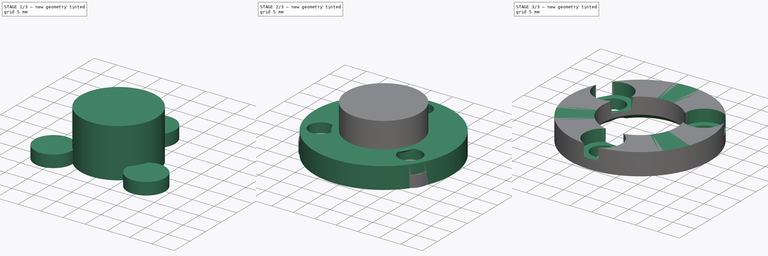
[diagram: build sequence overview — one tinted view per stage of 3, left to right]
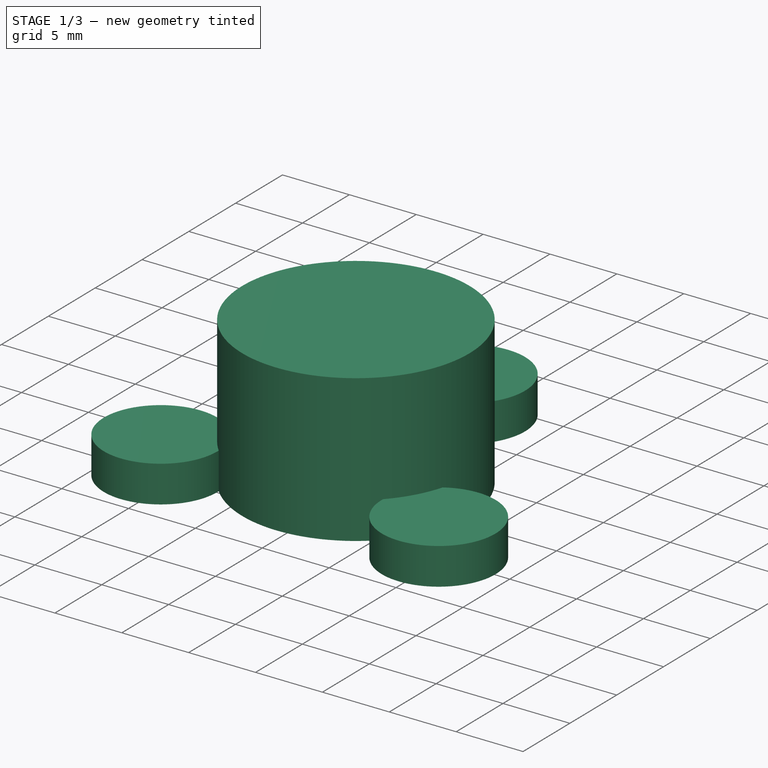
[diagram: stage 1 of 3 — iso view after this stage's code; geometry added in this stage tinted green]
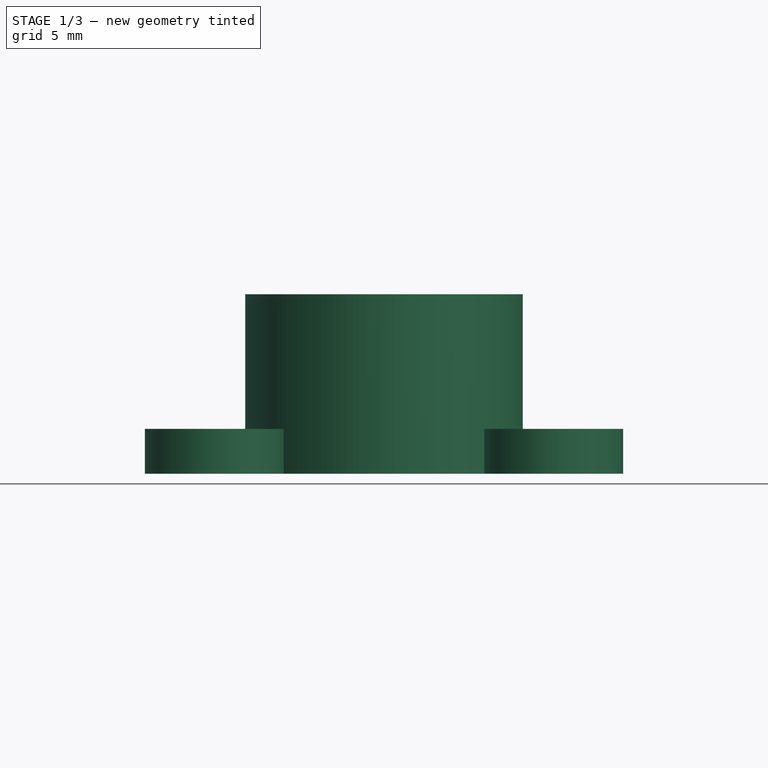
[diagram: stage 1 of 3 — front view after this stage's code; geometry added in this stage tinted green]
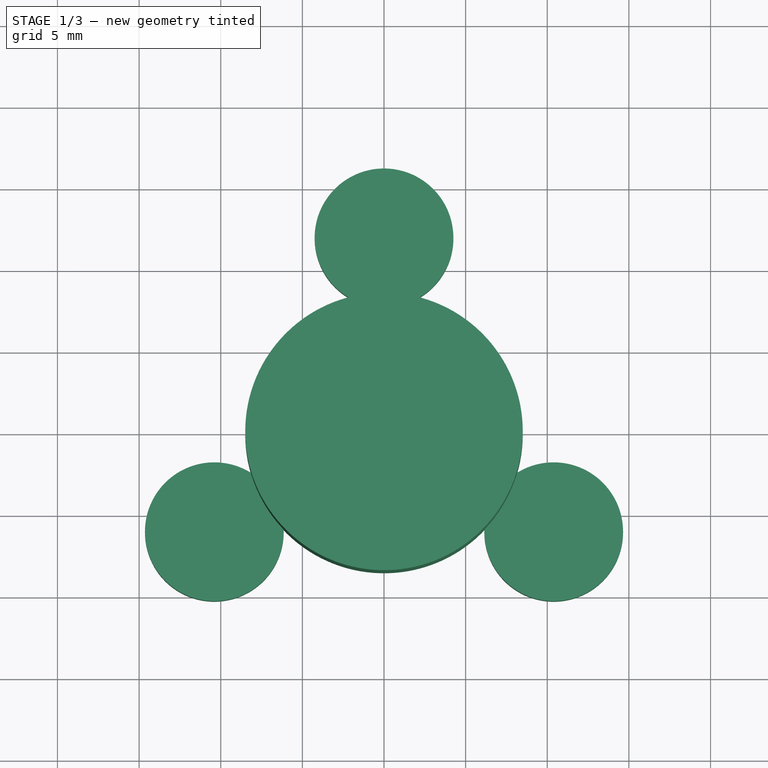
[diagram: stage 1 of 3 — top view after this stage's code; geometry added in this stage tinted green]
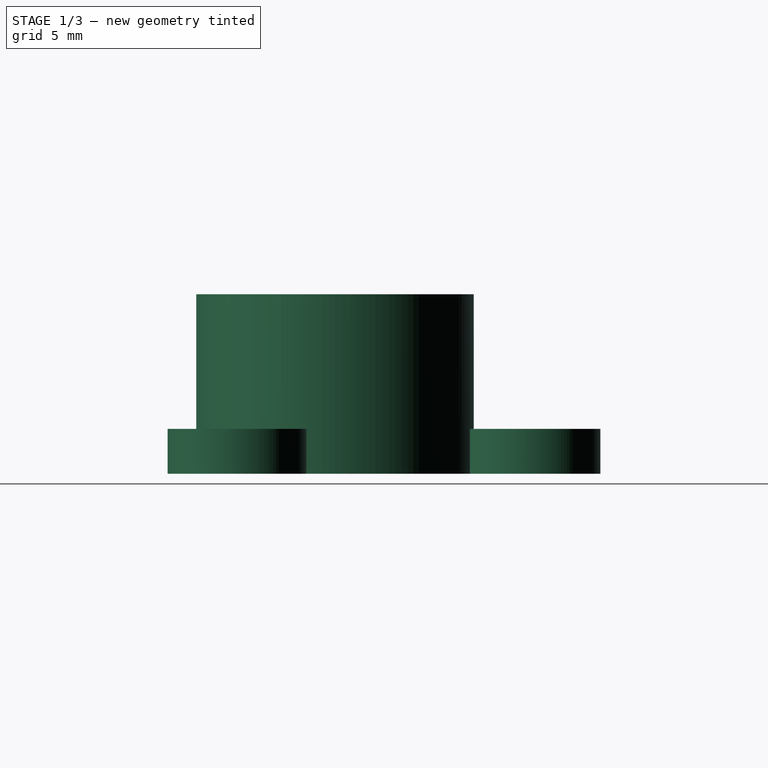
[diagram: stage 1 of 3 — right view after this stage's code; geometry added in this stage tinted green]
FCSTD DOCUMENT  (FreeCAD 0.15R4671 (Git))
Label: wheel
License: All rights reserved
LicenseURL: http://fr.wikipedia.org/wiki/<copyright redacted>
objects: Sketcher::SketchObject×2, PartDesign::Pad×2, Part::Cut×2, Part::Cone×1, Part::Cylinder×1, Part::MultiFuse×1
note: 11 computed .brp shape members not serialized (recipe doc carries the construction recipe); baked Part::Feature solids carry a one-line shape summary decoded from their .brp

FEATURE [Part::Cylinder] Cylinder  label="Cylindre"
  Angle = 360
  Height = 11
  Placement = pos=(40,0,0) rot=(0,0,1;0rad)
  Radius = 8.5
FEATURE [Sketcher::SketchObject] Sketch005
  Placement = pos=(40,0,0) rot=(0,0,1;0rad)
  sketch-geometry (3):
    g0: Circle CenterX=0 CenterY=12 CenterZ=0 NormalX=0 NormalY=0 NormalZ=1 Radius=4.25
    g1: Circle CenterX=-10.3923 CenterY=-5.99998 CenterZ=0 NormalX=0 NormalY=0 NormalZ=1 Radius=4.25
    g2: Circle CenterX=10.3923 CenterY=-5.99998 CenterZ=0 NormalX=0 NormalY=0 NormalZ=1 Radius=4.25
  constraints (9):
    c: PointOnObject(g0,g-2)
    c: Radius(g0) = 4.25
    c: DistanceY(g-1,g0) = 12
    c: Equal(g0,g2)
    c: Equal(g2,g1)
    c: Distance(g-1,g1) = 12
    c: Distance(g-1,g2) = 12
    c: Symmetric(g2,g1,g-2)
    c: Distance(g2,g0) = 20.7846
FEATURE [PartDesign::Pad] Pad005  label="Pad009"
  Length = 2.75
  Length2 = 100
  Placement = pos=(40,0,0) rot=(0,0,1;0rad)
  Sketch = -> Sketch005
  Type = 0
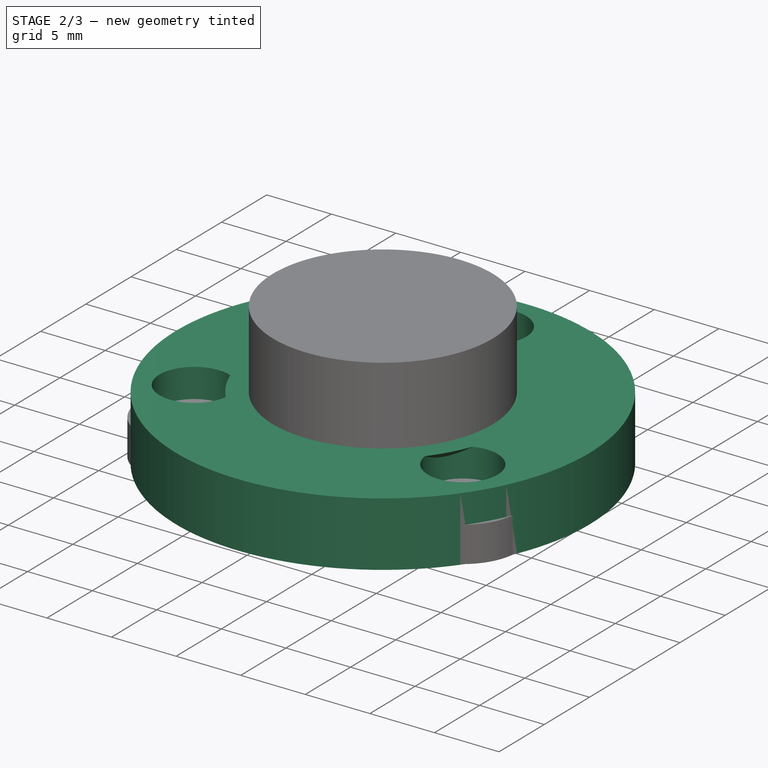
[diagram: stage 2 of 3 — iso view after this stage's code; geometry added in this stage tinted green]
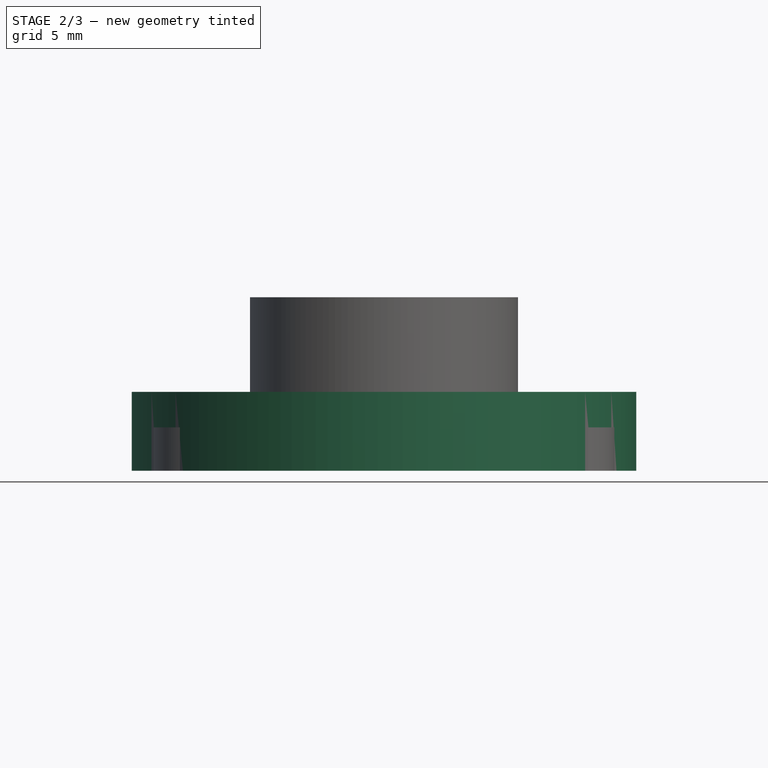
[diagram: stage 2 of 3 — front view after this stage's code; geometry added in this stage tinted green]
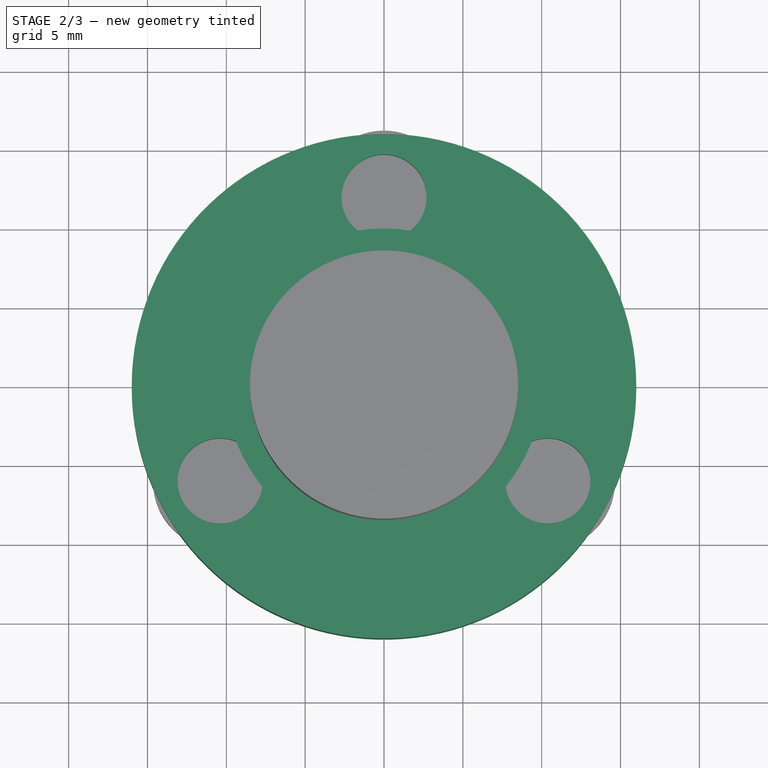
[diagram: stage 2 of 3 — top view after this stage's code; geometry added in this stage tinted green]
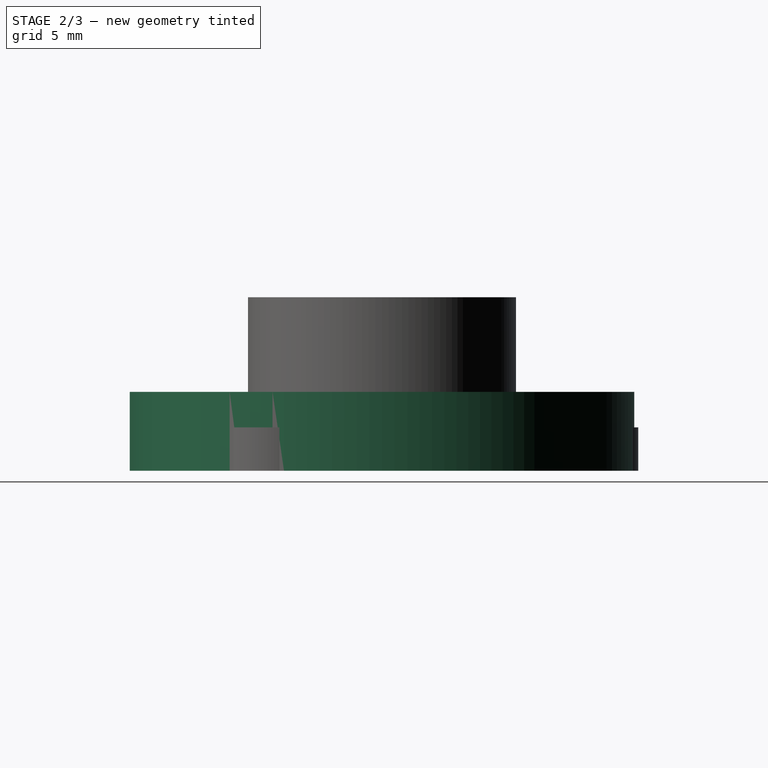
[diagram: stage 2 of 3 — right view after this stage's code; geometry added in this stage tinted green]
FEATURE [Sketcher::SketchObject] Sketch003
  Placement = pos=(40,0,0) rot=(0,0,1;0rad)
  sketch-geometry (4):
    g0: Circle CenterX=0 CenterY=0 CenterZ=0 NormalX=0 NormalY=0 NormalZ=1 Radius=16
    g1: Circle CenterX=0 CenterY=12 CenterZ=0 NormalX=0 NormalY=0 NormalZ=1 Radius=2.7
    g2: Circle CenterX=-10.3923 CenterY=-5.99998 CenterZ=0 NormalX=0 NormalY=0 NormalZ=1 Radius=2.7
    g3: Circle CenterX=10.3923 CenterY=-5.99998 CenterZ=0 NormalX=0 NormalY=0 NormalZ=1 Radius=2.7
  constraints (10):
    c: Coincident(g0,g-1)
    c: Radius(g0) = 16
    c: PointOnObject(g1,g-2)
    c: Equal(g3,g1)
    c: Equal(g1,g2)
    c: Radius(g1) = 2.7
    c: DistanceY(g-1,g1) = 12
    c: Symmetric(g3,g2,g-2)
    c: Distance(g-1,g3) = 12
    c: Distance(g1,g3) = 20.7846
FEATURE [PartDesign::Pad] Pad003  label="Pad006"
  Length = 5
  Length2 = 100
  Placement = pos=(40,0,0) rot=(0,0,1;0rad)
  Sketch = -> Sketch003
  Type = 0
FEATURE [Part::Cone] Cone  label="Cône"
  Angle = 360
  Height = 3
  Placement = pos=(40,0,2) rot=(0,0,1;0rad)
  Radius1 = 6.5
  Radius2 = 10
FEATURE [Part::MultiFuse] Fusion
  Shapes = -> [Cone,Cylinder]
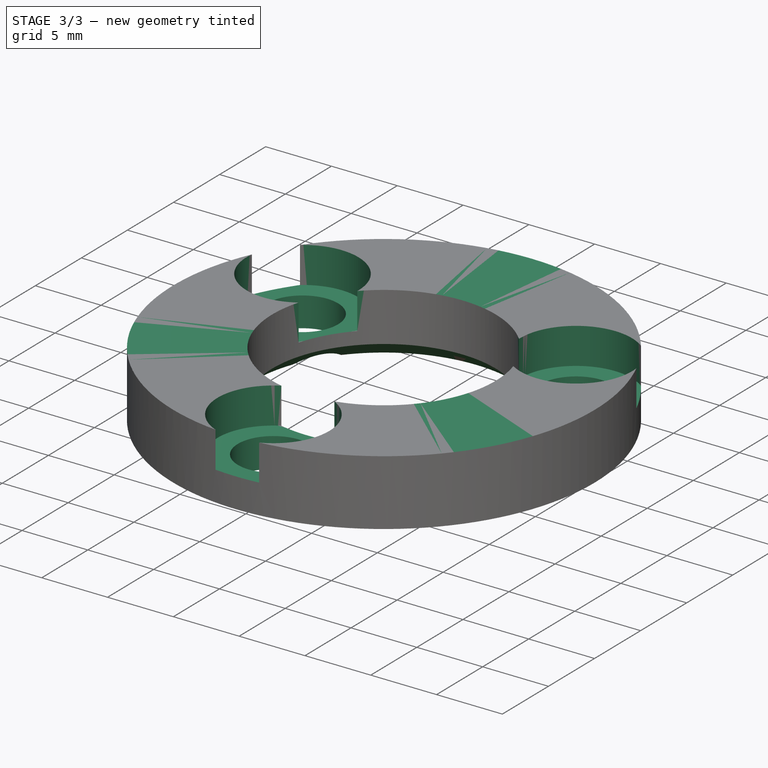
[diagram: stage 3 of 3 — iso view after this stage's code; geometry added in this stage tinted green]
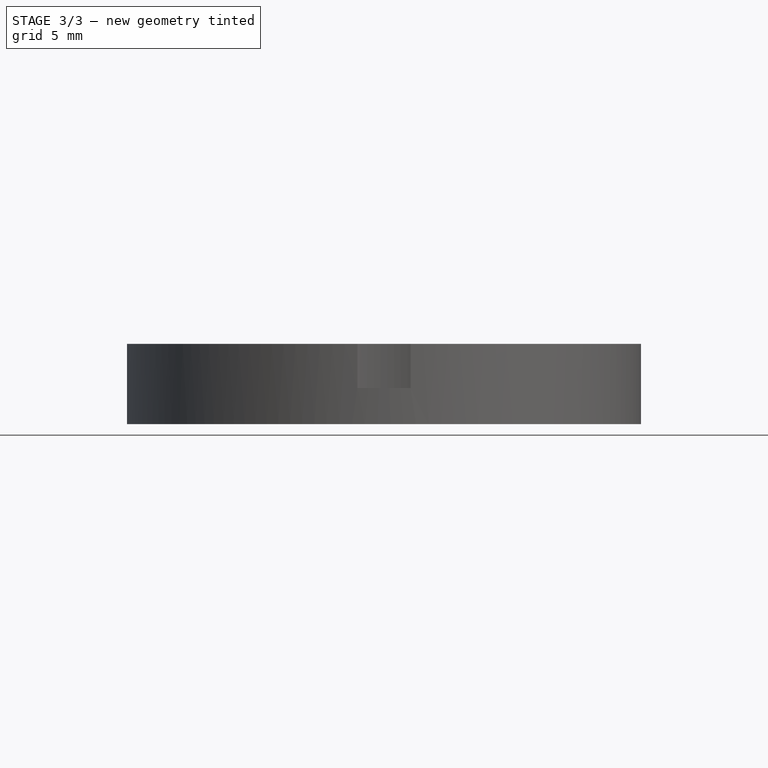
[diagram: stage 3 of 3 — front view after this stage's code; geometry added in this stage tinted green]
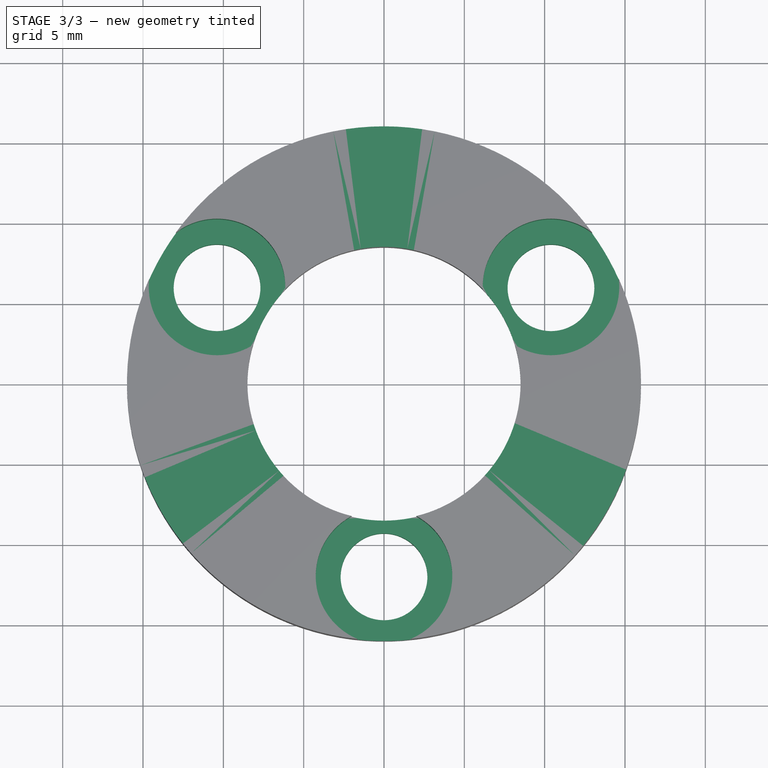
[diagram: stage 3 of 3 — top view after this stage's code; geometry added in this stage tinted green]
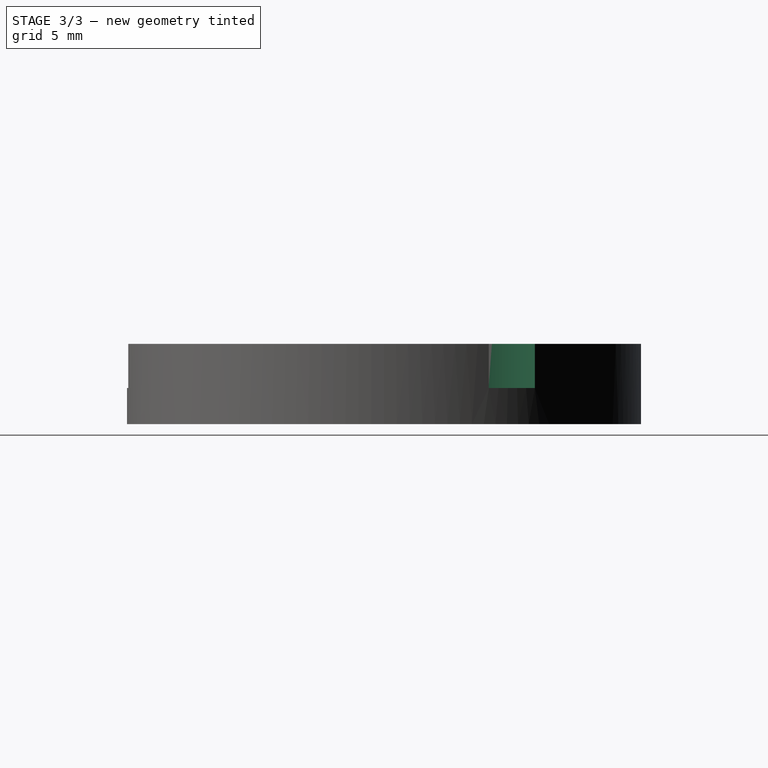
[diagram: stage 3 of 3 — right view after this stage's code; geometry added in this stage tinted green]
FEATURE [Part::Cut] Cut002  label="bottom"
  Base = -> Pad003
  Tool = -> Fusion
FEATURE [Part::Cut] Cut  label="wheel"
  Base = -> Cut002
  Placement = pos=(0,0,5) rot=(1,0,0;3.14159rad)
  Tool = -> Pad005
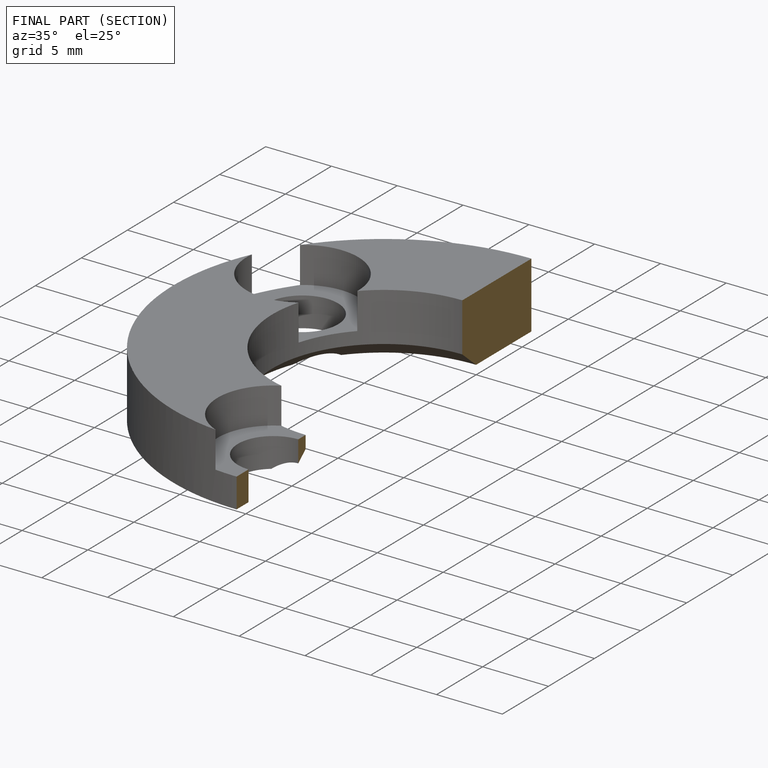
[diagram: finished part — half-section view (interior)]
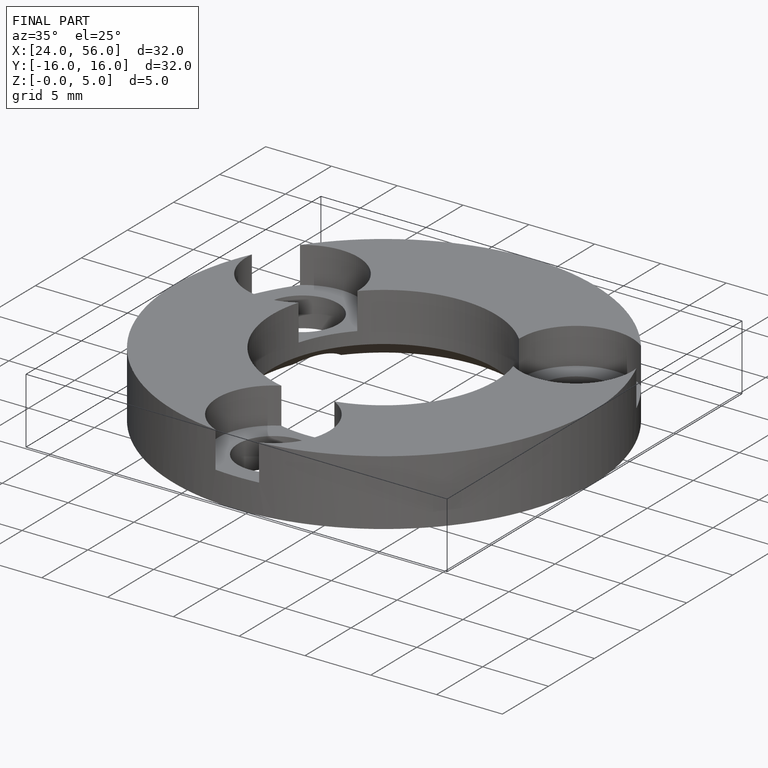
[diagram: finished part — iso view with bounding-box wireframe]
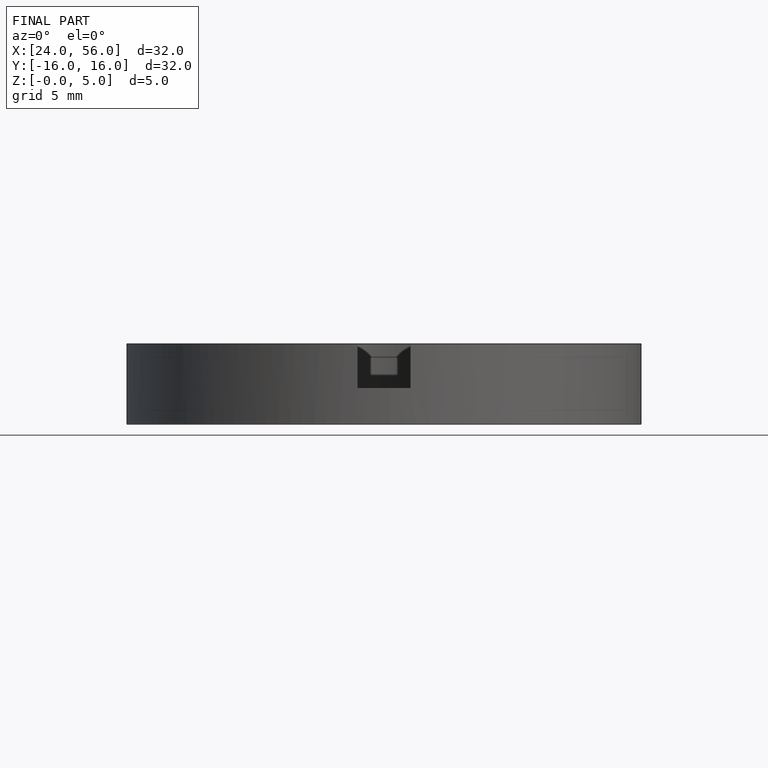
[diagram: finished part — front view with bounding-box wireframe]
